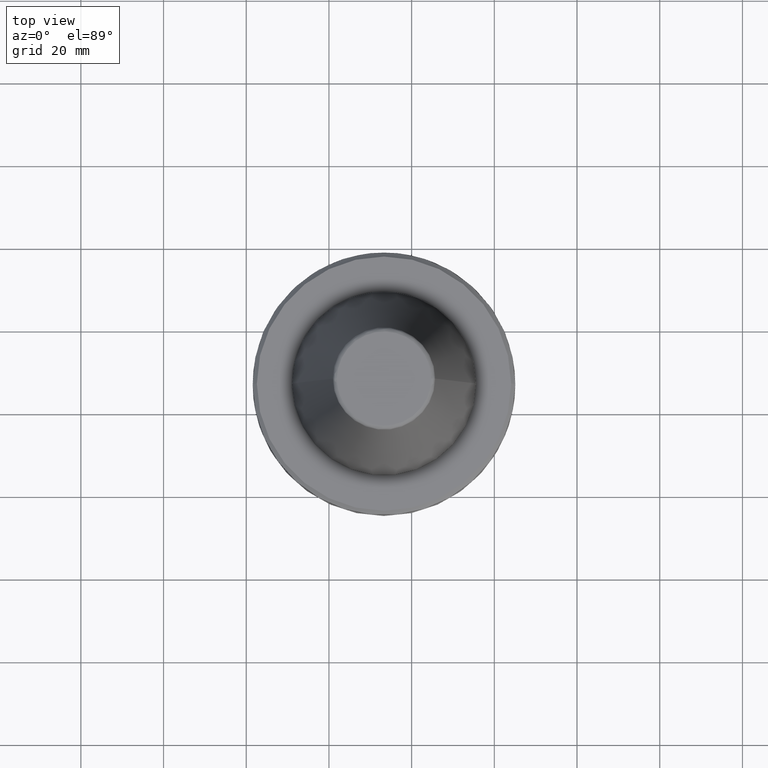
[diagram: clean part render]
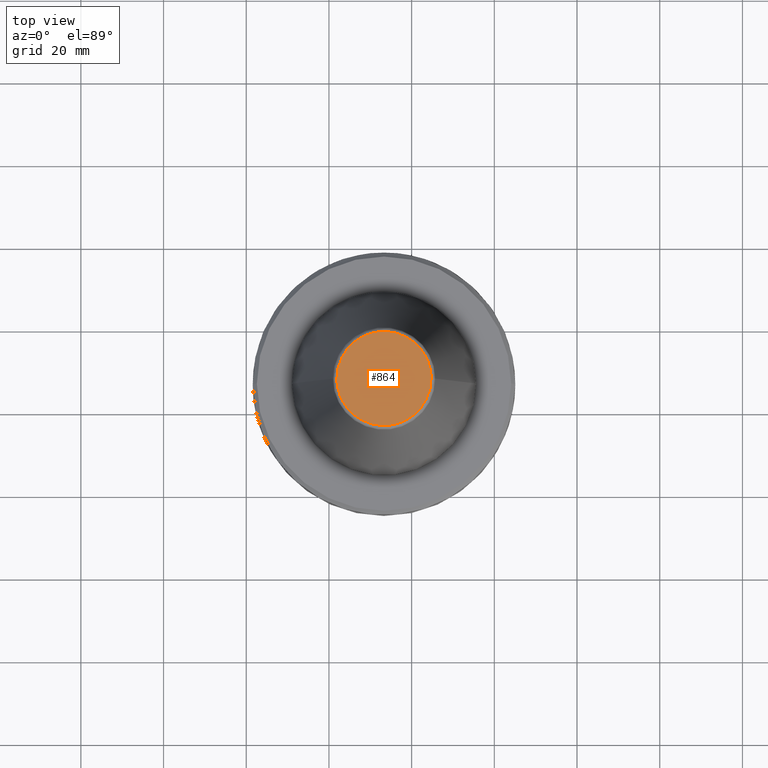
[diagram: same view with one face highlighted and labeled with its STEP entity id]
A machine part, top view. The second image highlights one B-rep face of the part: STEP entity #864.
In plain terms, the highlighted planar face has unit normal (0, 0, 1).
Its self-contained STEP definition (entity closure, byte-faithful):
#45 = CARTESIAN_POINT ( 'NONE',  ( 84.70132672272379200, 86.06069101126570300, 155.6678056080913000 ) ) ;
#97 = CARTESIAN_POINT ( 'NONE',  ( 84.70132672272379200, 86.06069101126570300, 155.6678056080913000 ) ) ;
#117 = EDGE_CURVE ( 'NONE', #1956, #2094, #740, .T. ) ;
#166 = CARTESIAN_POINT ( 'NONE',  ( 84.70132672375075300, 63.29036583176225900, 155.6678056080913800 ) ) ;
#375 = CARTESIAN_POINT ( 'NONE',  ( 61.93100154324727700, 63.29036583176225900, 155.6678056080913800 ) ) ;
#433 =( BOUNDED_CURVE ( )  B_SPLINE_CURVE ( 3, ( #1286, #2146, #1547, #567 ),
 .UNSPECIFIED., .F., .F. ) 
 B_SPLINE_CURVE_WITH_KNOTS ( ( 4, 4 ),
 ( 0.0000000000000000000, 1.000000000000000000 ),
 .UNSPECIFIED. ) 
 CURVE ( )  GEOMETRIC_REPRESENTATION_ITEM ( )  RATIONAL_B_SPLINE_CURVE ( ( 0.9999999999062556500, 0.3333333333020848700, 0.3333333333020848700, 0.9999999999062556500 ) ) 
 REPRESENTATION_ITEM ( '' )  );
#534 = CARTESIAN_POINT ( 'NONE',  ( 61.93100154427419600, 86.06069101126570300, 155.6678056080913000 ) ) ;
#567 = CARTESIAN_POINT ( 'NONE',  ( 84.70132672272379200, 86.06069101126570300, 155.6678056080913000 ) ) ;
#740 =( BOUNDED_CURVE ( )  B_SPLINE_CURVE ( 3, ( #97, #166, #375, #1519 ),
 .UNSPECIFIED., .F., .F. ) 
 B_SPLINE_CURVE_WITH_KNOTS ( ( 4, 4 ),
 ( 0.0000000000000000000, 1.000000000000000000 ),
 .UNSPECIFIED. ) 
 CURVE ( )  GEOMETRIC_REPRESENTATION_ITEM ( )  RATIONAL_B_SPLINE_CURVE ( ( 0.9999999999062556500, 0.3333333333020848700, 0.3333333333020848700, 0.9999999999062556500 ) ) 
 REPRESENTATION_ITEM ( '' )  );
#836 = EDGE_CURVE ( 'NONE', #2094, #1956, #433, .T. ) ;
#864 = ADVANCED_FACE ( 'NONE', ( #1948 ), #1818, .T. ) ;
#1252 = ORIENTED_EDGE ( 'NONE', *, *, #836, .F. ) ;
#1286 = CARTESIAN_POINT ( 'NONE',  ( 61.93100154427419600, 86.06069101126570300, 155.6678056080913000 ) ) ;
#1448 = ORIENTED_EDGE ( 'NONE', *, *, #117, .F. ) ;
#1519 = CARTESIAN_POINT ( 'NONE',  ( 61.93100154427419600, 86.06069101126570300, 155.6678056080913000 ) ) ;
#1547 = CARTESIAN_POINT ( 'NONE',  ( 84.70132672375075300, 108.8310161907692300, 155.6678056080913800 ) ) ;
#1790 = DIRECTION ( 'NONE',  ( 1.000000000000000000, 0.0000000000000000000, -0.0000000000000000000 ) ) ;
#1793 = DIRECTION ( 'NONE',  ( 0.0000000000000000000, 0.0000000000000000000, 1.000000000000000000 ) ) ;
#1818 = PLANE ( 'NONE',  #2792 ) ;
#1831 = CARTESIAN_POINT ( 'NONE',  ( 61.79437959249899100, 74.53888186226571100, 155.6678056080913000 ) ) ;
#1948 = FACE_OUTER_BOUND ( 'NONE', #2492, .T. ) ;
#1956 = VERTEX_POINT ( 'NONE', #45 ) ;
#2094 = VERTEX_POINT ( 'NONE', #534 ) ;
#2146 = CARTESIAN_POINT ( 'NONE',  ( 61.93100154324727700, 108.8310161907692300, 155.6678056080913800 ) ) ;
#2492 = EDGE_LOOP ( 'NONE', ( #1252, #1448 ) ) ;
#2792 = AXIS2_PLACEMENT_3D ( 'NONE', #1831, #1793, #1790 ) ;